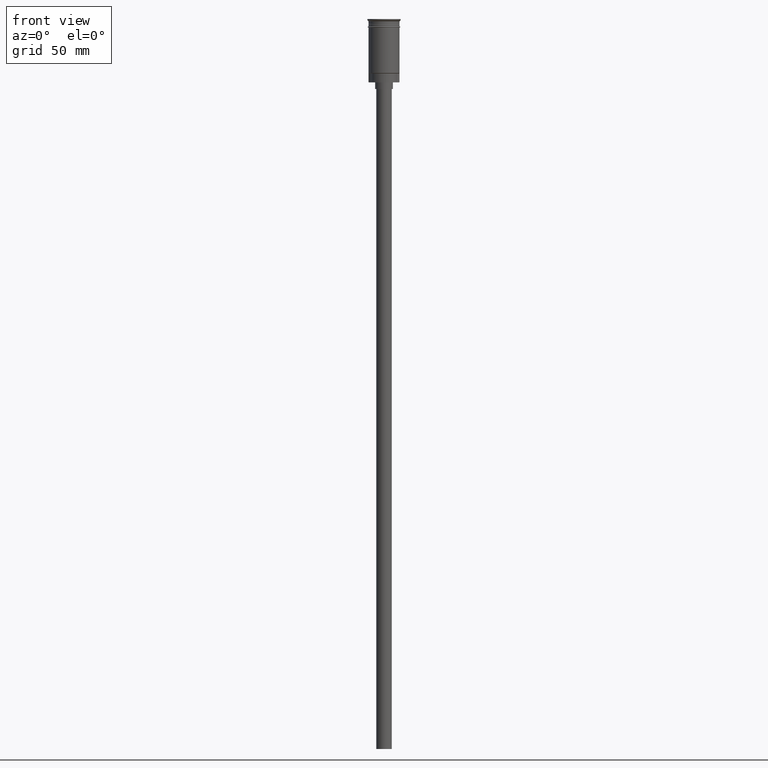
[diagram: clean part render]
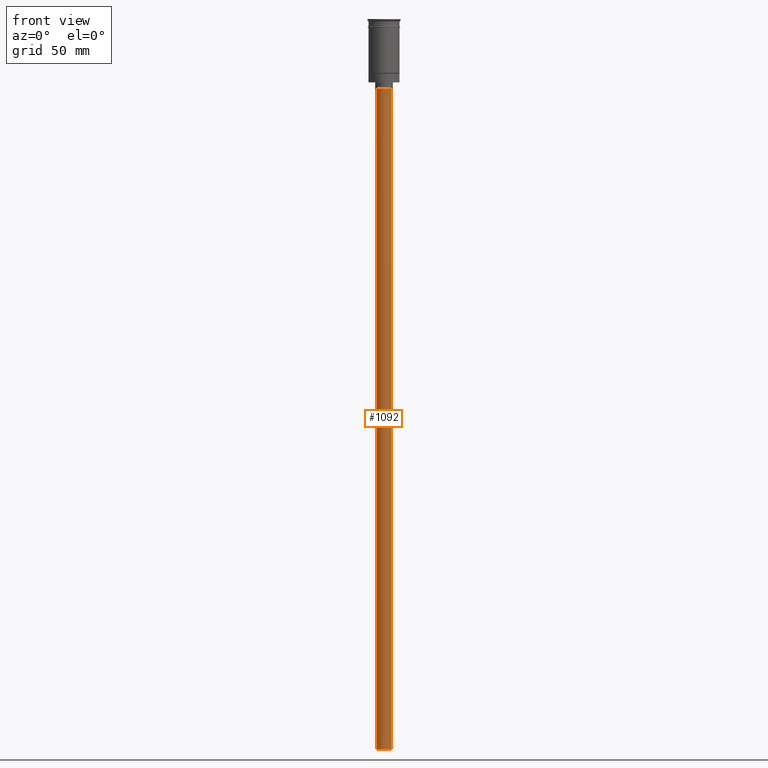
[diagram: same view with one face highlighted and labeled with its STEP entity id]
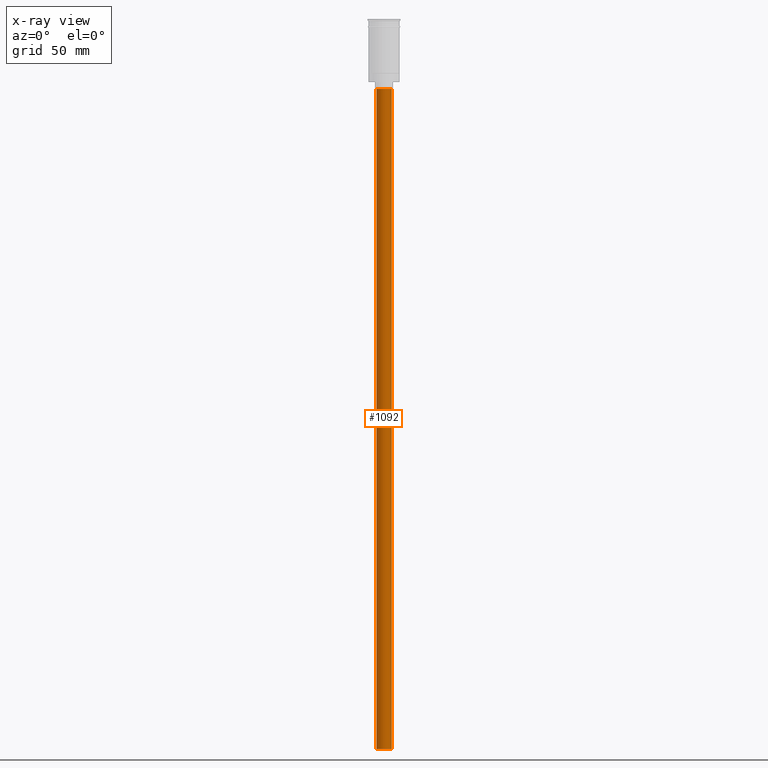
[diagram: x-ray of the same camera — body ghosted, the highlighted face saturated]
A machine part, front view. The second image highlights one B-rep face of the part: STEP entity #1092.
The next image is the same camera in x-ray: the body ghosted, the highlighted face saturated — about 0% of this face is hidden behind the body in this view.
In plain terms, the highlighted cylindrical surface (edge-blend (fillet) strip) has radius 3.5 mm, axis along (-0, -0, 1).
Its self-contained STEP definition (entity closure, byte-faithful):
#39 = VERTEX_POINT ( 'NONE', #328 ) ;
#41 = AXIS2_PLACEMENT_3D ( 'NONE', #604, #1090, #1445 ) ;
#146 = ORIENTED_EDGE ( 'NONE', *, *, #1272, .F. ) ;
#153 = ORIENTED_EDGE ( 'NONE', *, *, #1316, .F. ) ;
#182 = CARTESIAN_POINT ( 'NONE',  ( 0.000000000000000000, 0.000000000000000000, -328.5000000000000000 ) ) ;
#186 = LINE ( 'NONE', #1190, #876 ) ;
#328 = CARTESIAN_POINT ( 'NONE',  ( -3.500000000000000444, 4.286263797015737088E-16, -31.50000000000000000 ) ) ;
#341 = CARTESIAN_POINT ( 'NONE',  ( 0.000000000000000000, 0.000000000000000000, -31.50000000000000000 ) ) ;
#423 = CARTESIAN_POINT ( 'NONE',  ( -3.500000000000000444, 4.286263797015737088E-16, -328.5000000000000000 ) ) ;
#431 = VERTEX_POINT ( 'NONE', #549 ) ;
#433 = DIRECTION ( 'NONE',  ( -1.000000000000000000, 0.000000000000000000, 0.000000000000000000 ) ) ;
#480 = VECTOR ( 'NONE', #1177, 1000.000000000000000 ) ;
#537 = EDGE_CURVE ( 'NONE', #431, #873, #186, .T. ) ;
#549 = CARTESIAN_POINT ( 'NONE',  ( 3.500000000000000444, 0.000000000000000000, -328.5000000000000000 ) ) ;
#554 = AXIS2_PLACEMENT_3D ( 'NONE', #182, #919, #433 ) ;
#604 = CARTESIAN_POINT ( 'NONE',  ( 0.000000000000000000, 0.000000000000000000, -328.5000000000000000 ) ) ;
#830 = CIRCLE ( 'NONE', #933, 3.500000000000000444 ) ;
#831 = CYLINDRICAL_SURFACE ( 'NONE', #41, 3.500000000000000444 ) ;
#835 = VERTEX_POINT ( 'NONE', #1051 ) ;
#873 = VERTEX_POINT ( 'NONE', #920 ) ;
#876 = VECTOR ( 'NONE', #929, 1000.000000000000000 ) ;
#919 = DIRECTION ( 'NONE',  ( 0.000000000000000000, 0.000000000000000000, -1.000000000000000000 ) ) ;
#920 = CARTESIAN_POINT ( 'NONE',  ( 3.500000000000000444, 0.000000000000000000, -31.50000000000000000 ) ) ;
#929 = DIRECTION ( 'NONE',  ( -0.000000000000000000, -0.000000000000000000, 1.000000000000000000 ) ) ;
#933 = AXIS2_PLACEMENT_3D ( 'NONE', #341, #1343, #1464 ) ;
#1051 = CARTESIAN_POINT ( 'NONE',  ( -3.500000000000000444, 4.286263797015737088E-16, -328.5000000000000000 ) ) ;
#1090 = DIRECTION ( 'NONE',  ( -0.000000000000000000, -0.000000000000000000, 1.000000000000000000 ) ) ;
#1092 = ADVANCED_FACE ( 'NONE', ( #1579 ), #831, .T. ) ;
#1095 = ORIENTED_EDGE ( 'NONE', *, *, #1508, .T. ) ;
#1177 = DIRECTION ( 'NONE',  ( -0.000000000000000000, -0.000000000000000000, 1.000000000000000000 ) ) ;
#1190 = CARTESIAN_POINT ( 'NONE',  ( 3.500000000000000444, 0.000000000000000000, -328.5000000000000000 ) ) ;
#1249 = ORIENTED_EDGE ( 'NONE', *, *, #537, .T. ) ;
#1272 = EDGE_CURVE ( 'NONE', #835, #39, #1280, .T. ) ;
#1280 = LINE ( 'NONE', #423, #480 ) ;
#1316 = EDGE_CURVE ( 'NONE', #431, #835, #1380, .T. ) ;
#1343 = DIRECTION ( 'NONE',  ( 0.000000000000000000, 0.000000000000000000, -1.000000000000000000 ) ) ;
#1380 = CIRCLE ( 'NONE', #554, 3.500000000000000444 ) ;
#1445 = DIRECTION ( 'NONE',  ( 1.000000000000000000, 0.000000000000000000, 0.000000000000000000 ) ) ;
#1449 = EDGE_LOOP ( 'NONE', ( #146, #153, #1249, #1095 ) ) ;
#1464 = DIRECTION ( 'NONE',  ( -1.000000000000000000, 0.000000000000000000, 0.000000000000000000 ) ) ;
#1508 = EDGE_CURVE ( 'NONE', #873, #39, #830, .T. ) ;
#1579 = FACE_OUTER_BOUND ( 'NONE', #1449, .T. ) ;